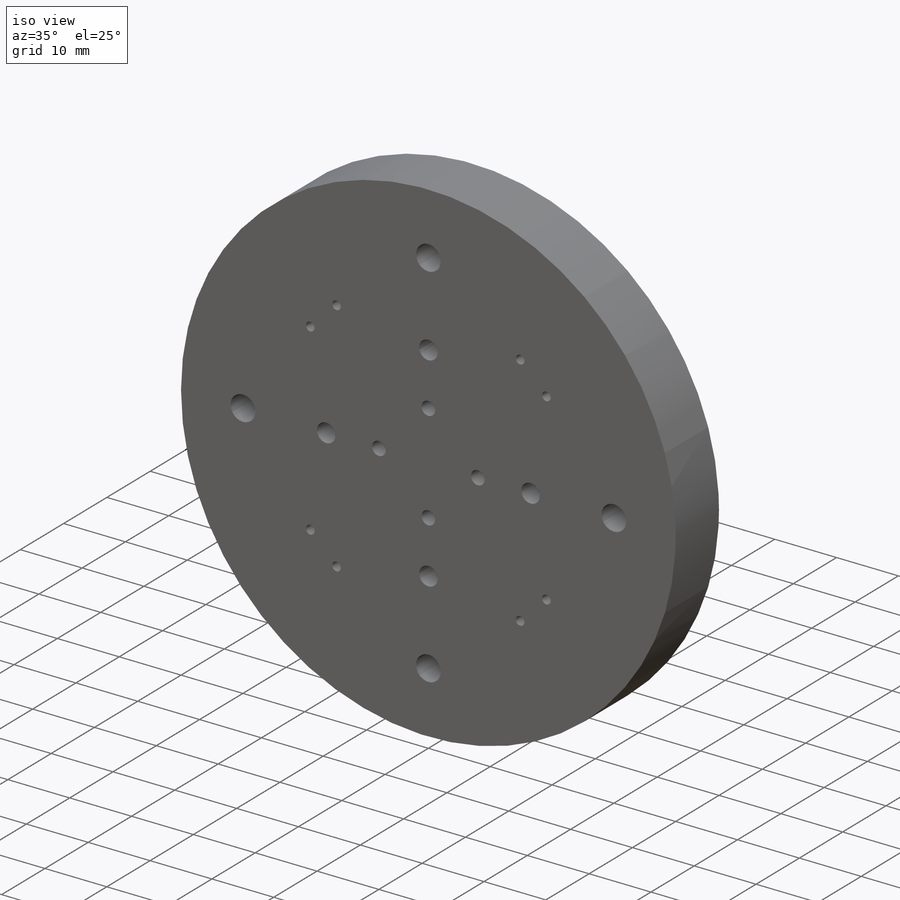
[diagram: iso view]
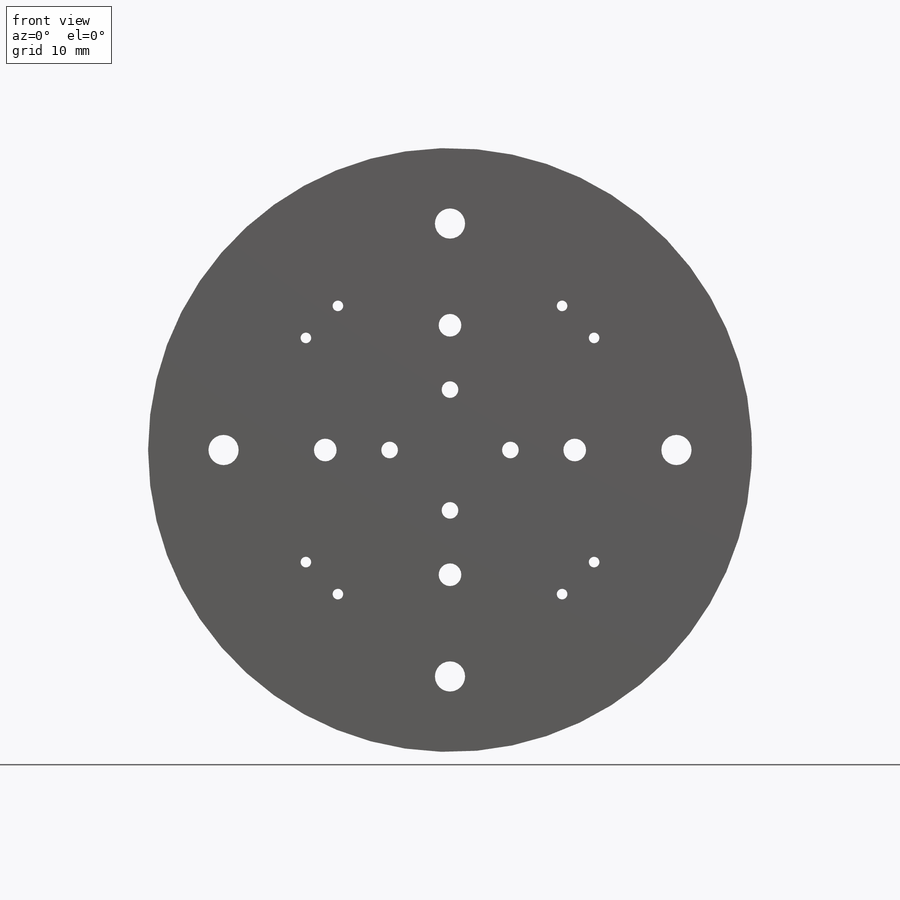
[diagram: front view]
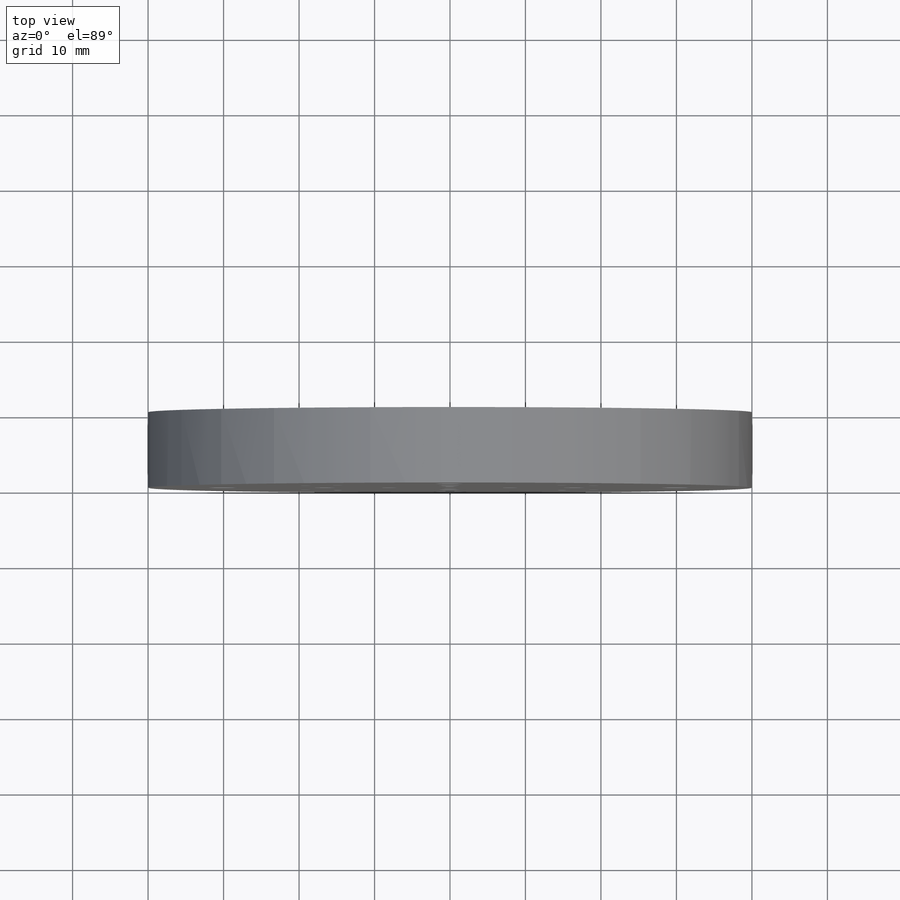
[diagram: top view]
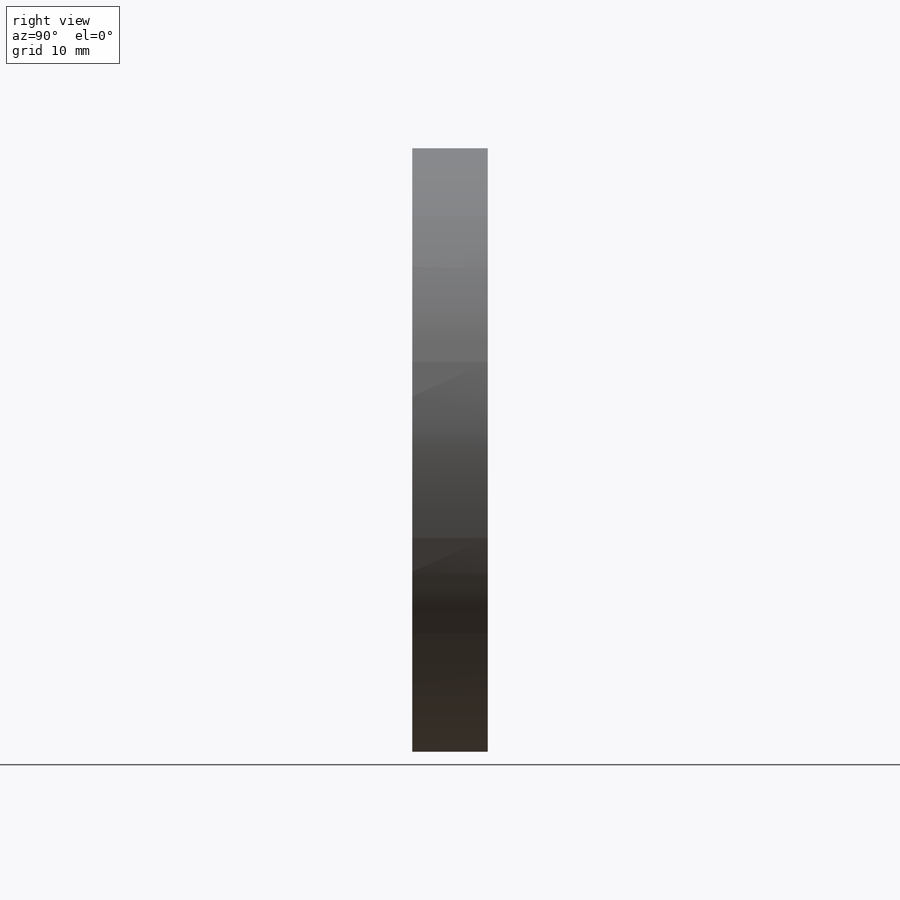
[diagram: right view]
SOLIDWORKS PART (.sldprt)
format: sldprt  version: not decoded by parser v0  size: 268,800 bytes
history: native  units: mm
features: sketch x10, hole x4, material x1, extrude x1, pattern_circular x1 (+11 scaffold rows collapsed)
feature tree (28):
  scaffold x11  (default folders/planes/origin — collapsed)
  material  "Material <not specified>"
  sketch  "Sketch1"  dims[D1=~37.836239mm]
  extrude  "Boss-Extrude1"  Depth=10mm
  hole  "Ø4.0 (4) Diameter Hole1"  Diameter=4mm Depth=10mm
  sketch  "Sketch5"  dims[D1=~19.747182mm]
  sketch  "Sketch4"  dims[hole-wizard template sketch: 47 standard entries collapsed; hole parameters kept: c15.Hole Depth=10.0mm c15.D3=~14.816244mm c15.Drill Angle=118.0deg]
  hole  "Ø2.2 (2.2) Diameter Hole1"  Diameter=2.2mm Depth=10mm
  sketch  "Sketch7"  dims[D1=~15.279875mm]
  sketch  "Sketch6"  dims[hole-wizard template sketch: 47 standard entries collapsed; hole parameters kept: c15.Hole Depth=10.0mm c15.D3=~14.816244mm c15.Drill Angle=118.0deg]
  hole  "Ø3.0 (3) Diameter Hole4"  Diameter=3mm Depth=10mm
  sketch  "Sketch9"  dims[D1=~14.161098mm]
  sketch  "Sketch8"  dims[hole-wizard template sketch: 50 standard entries collapsed; hole parameters above]
  sketch  "Sketch10"
  hole  "Ø1.4 (1.4) Diameter Hole1"  Diameter=1.4mm Depth=10mm
  sketch  "Sketch12"  dims[c1.D1=~9.145816mm c2.D1=~81.758021deg c3.D1=~9.145816mm c4.D1=90.0deg c4.D2=~5.707787mm c4.D3=~5.976785mm c5.D2=3.0mm c5.D3=3.0mm c5.D4=24.0mm c6.D2=6.0mm c7.D2=~178.299027deg]
  sketch  "Sketch11"  dims[hole-wizard template sketch: 59 standard entries collapsed; hole parameters kept: c18.Thru Hole Dia.=1.4mm c18.Thru Hole Depth=10.0mm]
  pattern_circular  "CirPattern1"  Count=4 Angle=360deg
decode coverage: 15 of 16 modeling features carry decoded parameters
note: ~ marks probable driven/reference dimensions
summary: Diameter pulled from absorbed wizard sketch
note: suppression state not decoded; provenance and decode notes live in map.json
